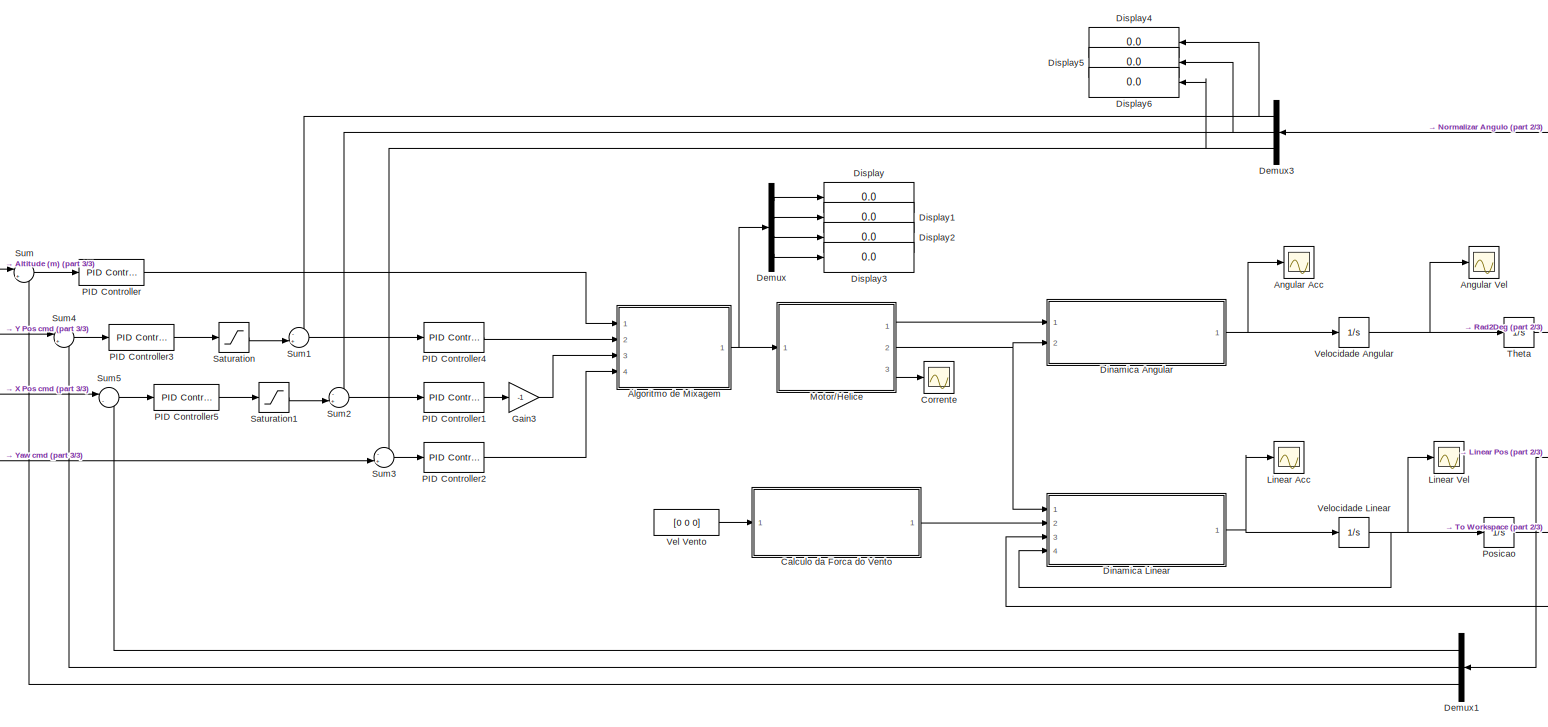
[diagram: root canvas - part 1/3, most of the canvas]
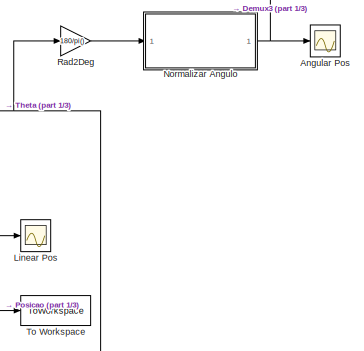
[diagram: root canvas - part 2/3, middle right region]
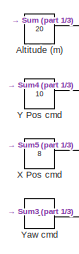
[diagram: root canvas - part 3/3, middle left region]
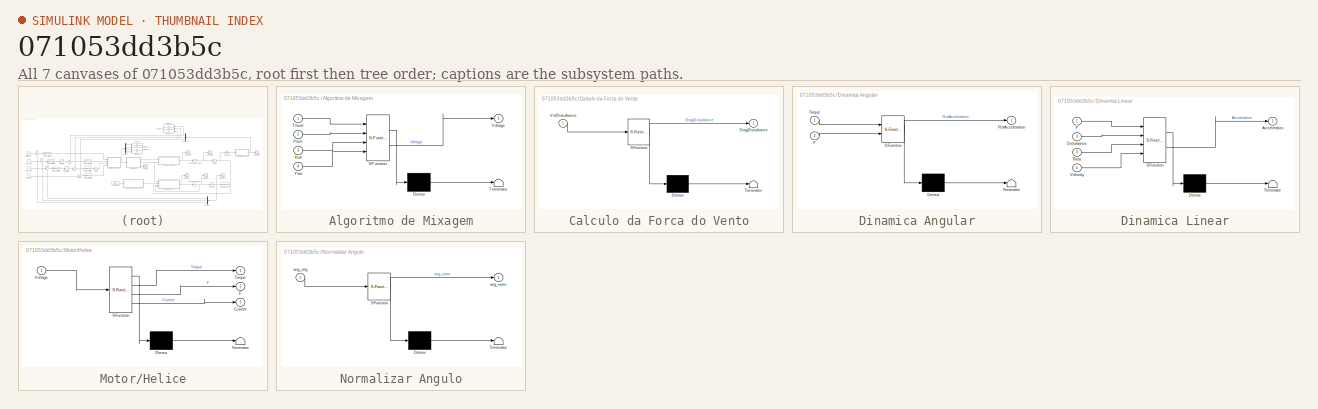
[diagram: thumbnail index - all 7 canvases of the model, root first then tree order]
MODEL slx_071053dd3b5c
KIND model
CONFIG AbsTol = auto
CONFIG EnableMultiTasking = off
CONFIG FixedStep = auto
CONFIG MaxStep = auto
CONFIG MinStep = auto
CONFIG RelTol = 1e-3
CONFIG SampleTimeConstraint = Unconstrained
CONFIG Solver = VariableStepAuto
CONFIG SolverName = VariableStepAuto
CONFIG StartTime = 0.0
CONFIG StopTime = 100
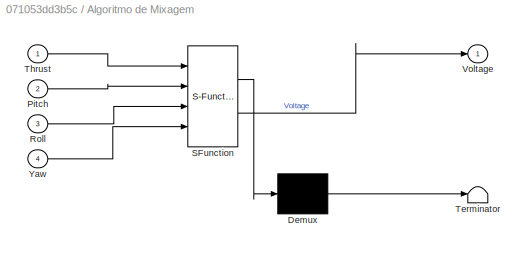
BLOCK [SubSystem] Algoritmo de Mixagem
  ErrorFcn = Stateflow.Translate.translate
  PermitHierarchicalResolution = ExplicitOnly
  Ports = [4, 1]
  RequestExecContextInheritance = off
  SFBlockType = MATLAB Function
  TreatAsAtomicUnit = on
BLOCK [Demux] Algoritmo de Mixagem/ Demux 
  Outputs = 1
  Ports = [1, 1]
BLOCK [S-Function] Algoritmo de Mixagem/ SFunction 
  EnableBusSupport = on
  FunctionName = sf_sfun
  PortCounts = [4 2]
  Ports = [4, 2]
  SFcnIsStateOwnerBlock = off
  SFunctionDeploymentMode = off
  Tag = Stateflow S-Function 3
BLOCK [Terminator] Algoritmo de Mixagem/ Terminator 
BLOCK [Inport] Algoritmo de Mixagem/Pitch
  Port = 2
BLOCK [Inport] Algoritmo de Mixagem/Roll
  Port = 3
BLOCK [Inport] Algoritmo de Mixagem/Thrust
BLOCK [Outport] Algoritmo de Mixagem/Voltage
BLOCK [Inport] Algoritmo de Mixagem/Yaw
  Port = 4
BLOCK [Constant] Altitude (m)
  Value = 20
BLOCK [Scope] Angular Acc
  Floating = off
  NumInputPorts = 1
  Ports = [1]
  ScopeSpecificationString = Simulink.scopes.TimeScopeBlockCfg('CurrentConfiguration', extmgr.ConfigurationSet(extmgr.Configuration('Core','General UI',true),extmgr.Configuration('Core','Source UI',true),extmgr.Configuration('Sources','WiredSimulink',true,'DataLoggingVariableName','ScopeData3'),extmgr.Configuration('Visuals','Time Domain',true,'SerializedDisplays',{struct('MinYLimReal','-405.705','MaxYLimReal','785.57143','YL...<+1438ch>
BLOCK [Scope] Angular Pos
  Floating = off
  NumInputPorts = 1
  Ports = [1]
  ScopeSpecificationString = Simulink.scopes.TimeScopeBlockCfg('CurrentConfiguration', extmgr.ConfigurationSet(extmgr.Configuration('Core','General UI',true),extmgr.Configuration('Core','Source UI',true),extmgr.Configuration('Sources','WiredSimulink',true,'DataLoggingVariableName','ScopeData4'),extmgr.Configuration('Visuals','Time Domain',true,'SerializedDisplays',{struct('MinYLimReal','-34.2116','MaxYLimReal','28.82302','YLa...<+1451ch>
BLOCK [Scope] Angular Vel
  Floating = off
  NumInputPorts = 1
  Ports = [1]
  ScopeSpecificationString = Simulink.scopes.TimeScopeBlockCfg('CurrentConfiguration', extmgr.ConfigurationSet(extmgr.Configuration('Core','General UI',true),extmgr.Configuration('Core','Source UI',true),extmgr.Configuration('Sources','WiredSimulink',true,'DataLoggingVariableName','ScopeData5'),extmgr.Configuration('Visuals','Time Domain',true,'SerializedDisplays',{struct('MinYLimReal','-1.00000','MaxYLimReal','1.00000','YLab...<+1542ch>
BLOCK [SubSystem] Calculo da Forca do Vento
  ErrorFcn = Stateflow.Translate.translate
  PermitHierarchicalResolution = ExplicitOnly
  Ports = [1, 1]
  RequestExecContextInheritance = off
  SFBlockType = MATLAB Function
  TreatAsAtomicUnit = on
BLOCK [Demux] Calculo da Forca do Vento/ Demux 
  Outputs = 1
  Ports = [1, 1]
BLOCK [S-Function] Calculo da Forca do Vento/ SFunction 
  EnableBusSupport = on
  FunctionName = sf_sfun
  PortCounts = [1 2]
  Ports = [1, 2]
  SFcnIsStateOwnerBlock = off
  SFunctionDeploymentMode = off
  Tag = Stateflow S-Function 4
BLOCK [Terminator] Calculo da Forca do Vento/ Terminator 
BLOCK [Outport] Calculo da Forca do Vento/DragDisturbance
BLOCK [Inport] Calculo da Forca do Vento/VelDisturbance
BLOCK [Scope] Corrente
  Floating = off
  NumInputPorts = 1
  Ports = [1]
  ScopeSpecificationString = Simulink.scopes.TimeScopeBlockCfg('CurrentConfiguration', extmgr.ConfigurationSet(extmgr.Configuration('Core','General UI',true),extmgr.Configuration('Core','Source UI',true),extmgr.Configuration('Sources','WiredSimulink',true),extmgr.Configuration('Visuals','Time Domain',true,'SerializedDisplays',{struct('MinYLimReal','54.9003','MaxYLimReal','56.09447','YLabelReal','','MinYLimMag','54.9003','MaxY...<+1439ch>
BLOCK [Demux] Demux
  Ports = [1, 4]
BLOCK [Demux] Demux1
  Outputs = 3
  Ports = [1, 3]
BLOCK [Demux] Demux3
  Outputs = 3
  Ports = [1, 3]
BLOCK [SubSystem] Dinamica Angular
  ErrorFcn = Stateflow.Translate.translate
  PermitHierarchicalResolution = ExplicitOnly
  Ports = [2, 1]
  RequestExecContextInheritance = off
  SFBlockType = MATLAB Function
  TreatAsAtomicUnit = on
BLOCK [Demux] Dinamica Angular/ Demux 
  Outputs = 1
  Ports = [1, 1]
BLOCK [S-Function] Dinamica Angular/ SFunction 
  EnableBusSupport = on
  FunctionName = sf_sfun
  PortCounts = [2 2]
  Ports = [2, 2]
  SFcnIsStateOwnerBlock = off
  SFunctionDeploymentMode = off
  Tag = Stateflow S-Function 1
BLOCK [Terminator] Dinamica Angular/ Terminator 
BLOCK [Inport] Dinamica Angular/F
  Port = 2
BLOCK [Outport] Dinamica Angular/RotAcceleration
BLOCK [Inport] Dinamica Angular/Torque
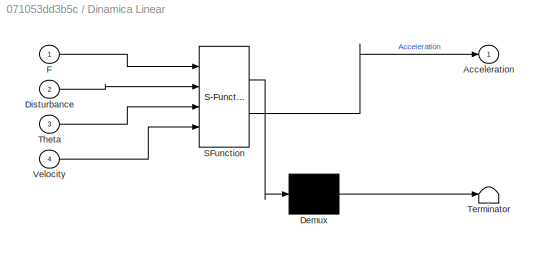
BLOCK [SubSystem] Dinamica Linear
  ErrorFcn = Stateflow.Translate.translate
  PermitHierarchicalResolution = ExplicitOnly
  Ports = [4, 1]
  RequestExecContextInheritance = off
  SFBlockType = MATLAB Function
  TreatAsAtomicUnit = on
BLOCK [Demux] Dinamica Linear/ Demux 
  Outputs = 1
  Ports = [1, 1]
BLOCK [S-Function] Dinamica Linear/ SFunction 
  EnableBusSupport = on
  FunctionName = sf_sfun
  PortCounts = [4 2]
  Ports = [4, 2]
  SFcnIsStateOwnerBlock = off
  SFunctionDeploymentMode = off
  Tag = Stateflow S-Function 5
BLOCK [Terminator] Dinamica Linear/ Terminator 
BLOCK [Outport] Dinamica Linear/Acceleration
BLOCK [Inport] Dinamica Linear/Disturbance
  Port = 2
BLOCK [Inport] Dinamica Linear/F
BLOCK [Inport] Dinamica Linear/Theta
  Port = 3
BLOCK [Inport] Dinamica Linear/Velocity
  Port = 4
BLOCK [Display] Display
  Decimation = 1
  Ports = [1]
BLOCK [Display] Display1
  Decimation = 1
  Ports = [1]
BLOCK [Display] Display2
  Decimation = 1
  Ports = [1]
BLOCK [Display] Display3
  Decimation = 1
  Ports = [1]
BLOCK [Display] Display4
  Decimation = 1
  Ports = [1]
BLOCK [Display] Display5
  Decimation = 1
  Ports = [1]
BLOCK [Display] Display6
  Decimation = 1
  Ports = [1]
BLOCK [Gain] Gain3
  Gain = -1
  NameLocation = top
BLOCK [Scope] Linear Acc
  Floating = off
  NumInputPorts = 1
  Ports = [1]
  ScopeSpecificationString = Simulink.scopes.TimeScopeBlockCfg('CurrentConfiguration', extmgr.ConfigurationSet(extmgr.Configuration('Core','General UI',true),extmgr.Configuration('Core','Source UI',true),extmgr.Configuration('Sources','WiredSimulink',true,'DataLoggingVariableName','ScopeData1'),extmgr.Configuration('Visuals','Time Domain',true),extmgr.Configuration('Tools','Plot Navigation',true),extmgr.Configuration('Tools',...<+40ch>
BLOCK [Scope] Linear Pos
  Floating = off
  NumInputPorts = 1
  Ports = [1]
  ScopeSpecificationString = Simulink.scopes.TimeScopeBlockCfg('CurrentConfiguration', extmgr.ConfigurationSet(extmgr.Configuration('Core','General UI',true),extmgr.Configuration('Core','Source UI',true),extmgr.Configuration('Sources','WiredSimulink',true,'DataLoggingVariableName','ScopeData2'),extmgr.Configuration('Visuals','Time Domain',true,'SerializedDisplays',{struct('MinYLimReal','-3.12224','MaxYLimReal','23.33887','YLa...<+1510ch>
BLOCK [Scope] Linear Vel
  Floating = off
  NumInputPorts = 1
  Ports = [1]
  ScopeSpecificationString = Simulink.scopes.TimeScopeBlockCfg('CurrentConfiguration', extmgr.ConfigurationSet(extmgr.Configuration('Core','General UI',true),extmgr.Configuration('Core','Source UI',true),extmgr.Configuration('Sources','WiredSimulink',true,'DataLoggingVariableName','ScopeData6'),extmgr.Configuration('Visuals','Time Domain',true,'SerializedDisplays',{struct('MinYLimReal','-26.46167','MaxYLimReal','22.61723','YL...<+1462ch>
BLOCK [SubSystem] Motor//Helice
  ErrorFcn = Stateflow.Translate.translate
  PermitHierarchicalResolution = ExplicitOnly
  Ports = [1, 3]
  RequestExecContextInheritance = off
  SFBlockType = MATLAB Function
  TreatAsAtomicUnit = on
BLOCK [Demux] Motor//Helice/ Demux 
  Outputs = 1
  Ports = [1, 1]
BLOCK [S-Function] Motor//Helice/ SFunction 
  EnableBusSupport = on
  FunctionName = sf_sfun
  PortCounts = [1 4]
  Ports = [1, 4]
  SFcnIsStateOwnerBlock = off
  SFunctionDeploymentMode = off
  Tag = Stateflow S-Function 2
BLOCK [Terminator] Motor//Helice/ Terminator 
BLOCK [Outport] Motor//Helice/Current
  Port = 3
BLOCK [Outport] Motor//Helice/F
  Port = 2
BLOCK [Outport] Motor//Helice/Torque
BLOCK [Inport] Motor//Helice/Voltage
BLOCK [SubSystem] Normalizar Angulo
  ErrorFcn = Stateflow.Translate.translate
  PermitHierarchicalResolution = ExplicitOnly
  Ports = [1, 1]
  RequestExecContextInheritance = off
  SFBlockType = MATLAB Function
  TreatAsAtomicUnit = on
BLOCK [Demux] Normalizar Angulo/ Demux 
  Outputs = 1
  Ports = [1, 1]
BLOCK [S-Function] Normalizar Angulo/ SFunction 
  EnableBusSupport = on
  FunctionName = sf_sfun
  PortCounts = [1 2]
  Ports = [1, 2]
  SFcnIsStateOwnerBlock = off
  SFunctionDeploymentMode = off
  Tag = Stateflow S-Function 7
BLOCK [Terminator] Normalizar Angulo/ Terminator 
BLOCK [Outport] Normalizar Angulo/ang_norm
BLOCK [Inport] Normalizar Angulo/ang_orig
BLOCK [Reference] PID Controller  REF=simulink/Continuous/PID Controller
  Ports = [1, 1]
  SourceBlock = simulink/Continuous/PID Controller
  SourceProductBaseCode = SL
  SourceType = PID 1dof
BLOCK [Reference] PID Controller1  REF=simulink/Continuous/PID Controller
  Ports = [1, 1]
  SourceBlock = simulink/Continuous/PID Controller
  SourceProductBaseCode = SL
  SourceType = PID 1dof
BLOCK [Reference] PID Controller2  REF=simulink/Continuous/PID Controller
  Ports = [1, 1]
  SourceBlock = simulink/Continuous/PID Controller
  SourceProductBaseCode = SL
  SourceType = PID 1dof
BLOCK [Reference] PID Controller3  REF=simulink/Continuous/PID Controller
  Ports = [1, 1]
  SourceBlock = simulink/Continuous/PID Controller
  SourceProductBaseCode = SL
  SourceType = PID 1dof
BLOCK [Reference] PID Controller4  REF=simulink/Continuous/PID Controller
  Ports = [1, 1]
  SourceBlock = simulink/Continuous/PID Controller
  SourceProductBaseCode = SL
  SourceType = PID 1dof
BLOCK [Reference] PID Controller5  REF=simulink/Continuous/PID Controller
  Ports = [1, 1]
  SourceBlock = simulink/Continuous/PID Controller
  SourceProductBaseCode = SL
  SourceType = PID 1dof
BLOCK [Integrator] Posicao
  Ports = [1, 1]
BLOCK [Gain] Rad2Deg
  Gain = 180/pi()
BLOCK [Saturate] Saturation
  LowerLimit = -30
  UpperLimit = 30
BLOCK [Saturate] Saturation1
  LowerLimit = -30
  UpperLimit = 30
BLOCK [Sum] Sum
  Inputs = |+-
  Ports = [2, 1]
BLOCK [Sum] Sum1
  Inputs = -+|
  Ports = [2, 1]
BLOCK [Sum] Sum2
  Inputs = -+|
  Ports = [2, 1]
BLOCK [Sum] Sum3
  Inputs = -+|
  Ports = [2, 1]
BLOCK [Sum] Sum4
  Inputs = |+-
  Ports = [2, 1]
BLOCK [Sum] Sum5
  Inputs = |-+
  Ports = [2, 1]
BLOCK [Integrator] Theta
  Ports = [1, 1]
BLOCK [ToWorkspace] To Workspace
  FixptAsFi = on
  MaxDataPoints = inf
  Ports = [1]
  SampleTime = -1
  Save2DSignal = 2-D array (concatenate along first dimension)
  VariableName = PositionVector
BLOCK [Constant] Vel Vento
  Value = [0 0 0]
BLOCK [Integrator] Velocidade Angular
  Ports = [1, 1]
BLOCK [Integrator] Velocidade Linear
  Ports = [1, 1]
BLOCK [Constant] X Pos  cmd
  Value = 8
BLOCK [Constant] Y Pos cmd
  Value = 10
BLOCK [Constant] Yaw cmd
  Value = 0
NET Algoritmo de Mixagem:1 -> Demux:1, Motor//Helice:1
LINE Altitude (m):1 -> Sum:1
LINE Calculo da Forca do Vento:1 -> Dinamica Linear:2
LINE Demux1:1 -> Sum5:2
LINE Demux1:2 -> Sum4:2
LINE Demux1:3 -> Sum:2
NET Demux3:1 -> Display4:1, Sum1:1
NET Demux3:2 -> Display5:1, Sum2:1
NET Demux3:3 -> Display6:1, Sum3:1
LINE Demux:1 -> Display:1
LINE Demux:2 -> Display1:1
LINE Demux:3 -> Display2:1
LINE Demux:4 -> Display3:1
NET Dinamica Angular:1 -> Angular Acc:1, Velocidade Angular:1
NET Dinamica Linear:1 -> Linear Acc:1, Velocidade Linear:1
LINE Gain3:1 -> Algoritmo de Mixagem:3
LINE Motor//Helice:1 -> Dinamica Angular:1
NET Motor//Helice:2 -> Dinamica Angular:2, Dinamica Linear:1
LINE Motor//Helice:3 -> Corrente:1
NET Normalizar Angulo:1 -> Angular Pos:1, Demux3:1
LINE PID Controller1:1 -> Gain3:1
LINE PID Controller2:1 -> Algoritmo de Mixagem:4
LINE PID Controller3:1 -> Saturation:1
LINE PID Controller4:1 -> Algoritmo de Mixagem:2
LINE PID Controller5:1 -> Saturation1:1
LINE PID Controller:1 -> Algoritmo de Mixagem:1
NET Posicao:1 -> Demux1:1, Linear Pos:1, To Workspace:1
LINE Rad2Deg:1 -> Normalizar Angulo:1
LINE Saturation1:1 -> Sum2:2
LINE Saturation:1 -> Sum1:2
LINE Sum1:1 -> PID Controller4:1
LINE Sum2:1 -> PID Controller1:1
LINE Sum3:1 -> PID Controller2:1
LINE Sum4:1 -> PID Controller3:1
LINE Sum5:1 -> PID Controller5:1
LINE Sum:1 -> PID Controller:1
NET Theta:1 -> Dinamica Linear:3, Rad2Deg:1
LINE Vel Vento:1 -> Calculo da Forca do Vento:1
NET Velocidade Angular:1 -> Angular Vel:1, Theta:1
NET Velocidade Linear:1 -> Dinamica Linear:4, Linear Vel:1, Posicao:1
LINE X Pos  cmd:1 -> Sum5:1
LINE Y Pos cmd:1 -> Sum4:1
LINE Yaw cmd:1 -> Sum3:2
note: NET lines group one-source signal fan-out (src -> all destinations, sorted); 1:1 wires keep LINE
CHART Dinamica Angular states=1 transitions=1
  STATE_LABEL 'eML_blk_kernel()'
  STATE_LABEL 'SCRIPT:\nfunction RotAcceleration = fcn(Torque, F)\n    Moment=[0 0 0];\n    RotAcceleration=[0 0 0];\n    I=[0.003 0.003 0.007];\n   \n    Moment(1)= (F(3)+F(4))*0.237/2-(F(1)+F(2))*0.237/2;\n    Moment(2)= (F(3)+F(2))*0.237/2-(F(1)+F(4))*0.237/2;\n    Moment(3)= Torque(4)-Torque(1)+Torque(2)-Torque(3);\n    for i=1:3\n        RotAcceleration(i)=Moment(i)/I(i);\n    end\n'
CHART Motor//Helice states=1 transitions=1
  STATE_LABEL 'eML_blk_kernel()'
  STATE_LABEL 'SCRIPT:\nfunction [Torque, F, Current] = fcn(Voltage)\n    % As variáveis são de tamanho 4 porque representam cada uma das hélices\n    RPM = [0 0 0 0];\n    Torque = [0 0 0 0];\n    Current = [0 0 0 0];\n    F = [0 0 0 0];\n    \n    for i=1:4\n        RPM(i)=-2.6931*Voltage(i)^3+1400*Voltage(i);\n        % Calculando coeficiente de Thrust\n        Ct=2*10^-15*RPM(i)^3-4*10^-11*RPM(i)^2+3*10^-7*RPM(i)+0.101...<+216ch>'
CHART Algoritmo de Mixagem states=1 transitions=1
  STATE_LABEL 'eML_blk_kernel()'
  STATE_LABEL 'SCRIPT:\nfunction Voltage = fcn(Thrust, Pitch, Roll, Yaw)\n\n% Limitamos o Thrust apenas para 0-100, porque só gira para um lado\nThrust = max(0,Thrust);\n\n% O resto, depois de aplicar o Thrust, é usado pelo pitch. \nResto = 100-Thrust;\n% Devemos pegar o menor valor em volta do Thrust, então se o resto for\n% maior que o thrust, pegamos o próprio thrust\nif (Resto > Thrust)&&(Thrust~=0)\n    Resto = Thrust...<+1034ch>'
CHART Calculo da Forca do Vento states=1 transitions=1
  STATE_LABEL 'eML_blk_kernel()'
  STATE_LABEL 'SCRIPT:\nfunction DragDisturbance = fcn(VelDisturbance)\n    % Área superior é maior por serem 2 hastes e mais as hélices\n    A = [0.0197 0.0197 0.0197*2*1.3];\n    DragDisturbance=[0 0 0];\n    rho=1.225;\n    Cd=1;\n    \n    for i=1:3\n        if VelDisturbance(i)<0\n            DragDisturbance(i)=0.5*rho*VelDisturbance(i)^2*A(i)*Cd;\n        else\n            DragDisturbance(i)=-0.5*rho*VelDisturbance(i)...<+32ch>'
CHART Dinamica Linear states=1 transitions=1
  STATE_LABEL 'eML_blk_kernel()'
  STATE_LABEL 'SCRIPT:\nfunction Acceleration = fcn(F, Disturbance, Theta, Velocity)\n    m=0.743;\n    g=9.81;\n    A=[0.0197 0.0197 0.0512];\n    rho=1.225;\n    Cd=1;\n    \n    Acceleration=[0 0 0];\n    Force=[0 0 0];\n    Fprop=[0 0 0];\n    \n    % Calculamos as forças em relação ao referencial do drone\n    Fprop(1)=sin(Theta(2))*cos(Theta(1))*(F(1)+F(2)+F(3)+F(4));\n    Fprop(2)=sin(Theta(1))*cos(Theta(2))*(F(1)+F(2)...<+1195ch>'
CHART Normalizar Angulo states=1 transitions=1
  STATE_LABEL 'eML_blk_kernel()'
  STATE_LABEL 'SCRIPT:\nfunction ang_norm = fcn(ang_orig)\n\nang_norm=[0 0 0];\nfor i=1:3\n    % Primeiramente passamos os valores para o intervalo [0°,360°]\n    ang_norm(i) = mod(ang_orig(i),360);\n    if ang_norm(i) < 0\n        ang_norm(i) = ang_norm(i) + 360;\n    end\n    % Depois passamos esse valor para o intervalo [-180°,180°]\n    if ang_norm(i) > 180\n        ang_norm(i) = ang_norm(i) - 360;\n    end\nend'
CHART  states=0 transitions=0
CHART  states=0 transitions=0
CHART  states=0 transitions=0
CHART  states=0 transitions=0
CHART  states=0 transitions=0
CHART  states=0 transitions=0
